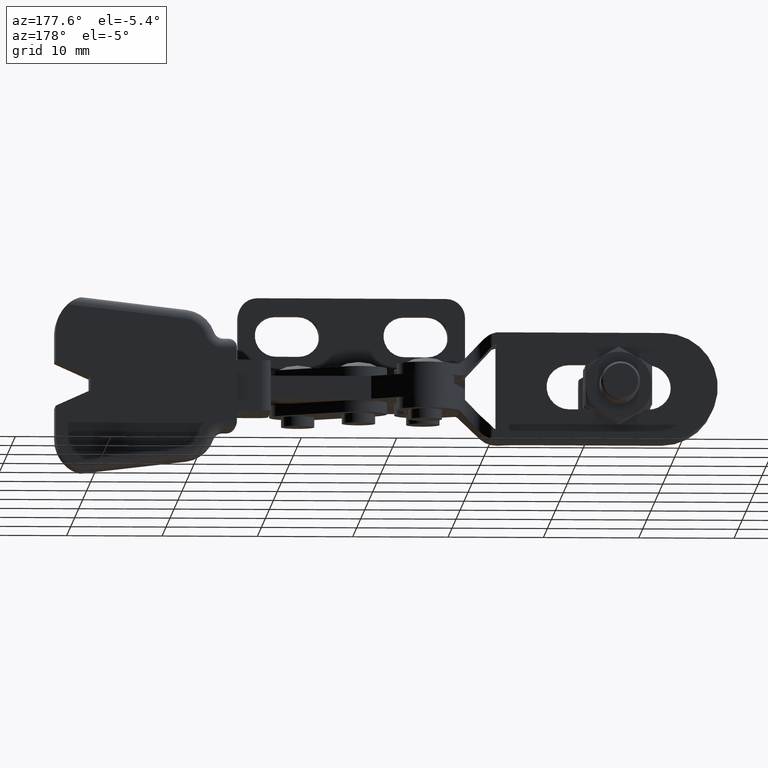
[diagram: clean part render]
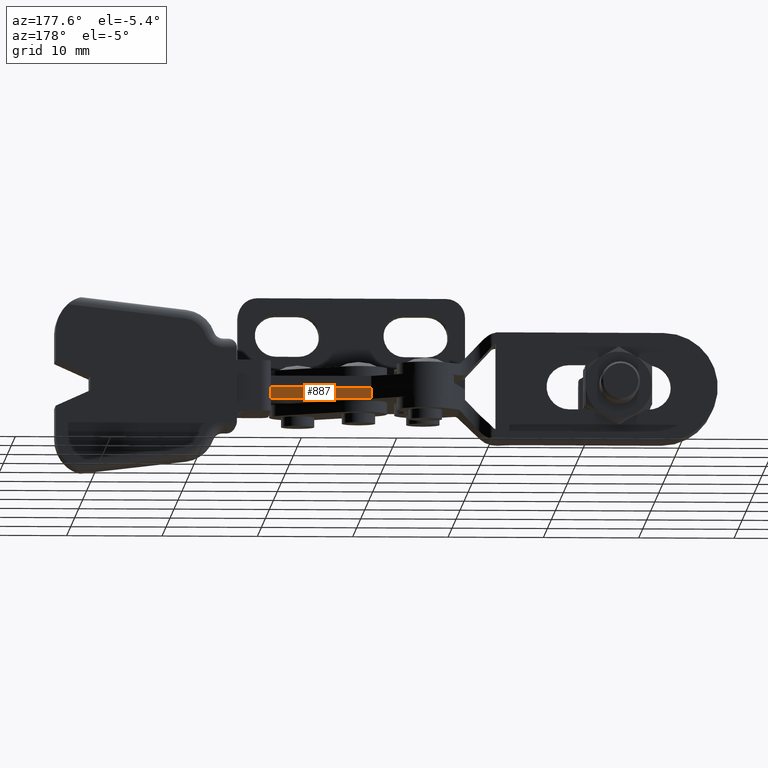
[diagram: same view with one face highlighted and labeled with its STEP entity id]
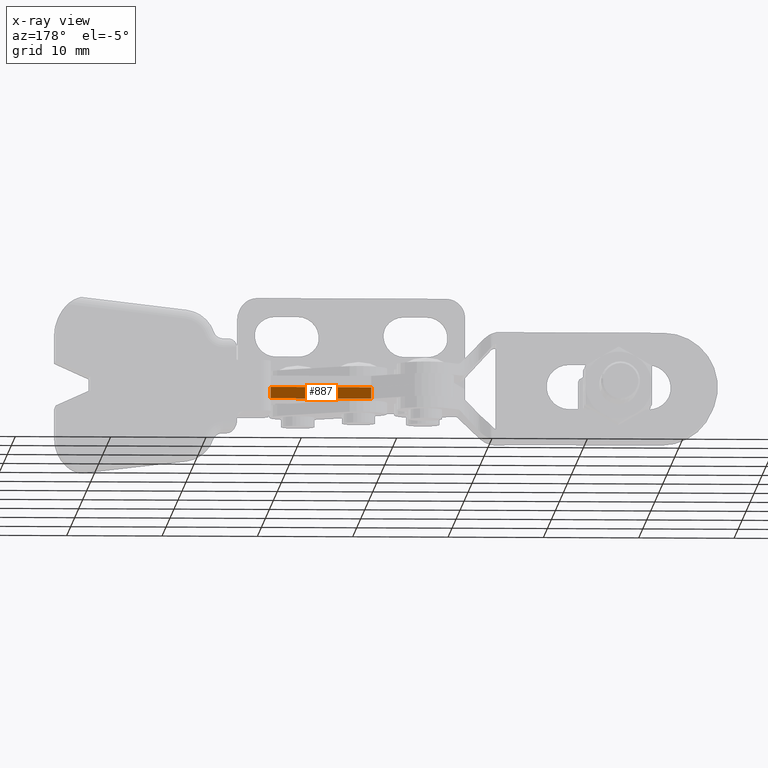
[diagram: x-ray of the same camera — body ghosted, the highlighted face saturated]
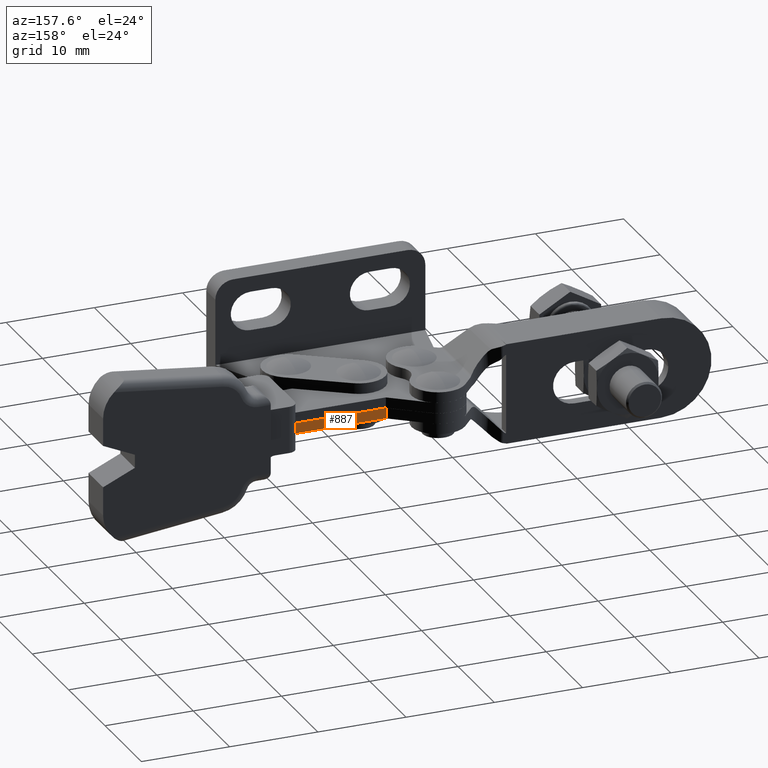
[diagram: same view with one face highlighted and labeled with its STEP entity id]
A machine part, auxiliary view. The second image highlights one B-rep face of the part: STEP entity #887.
The next image is the same camera in x-ray: the body ghosted, the highlighted face saturated — about 0% of this face is hidden behind the body in this view.
A second angle (auxiliary view) of the same face is appended — the face is thin or edge-on in the first view.
In plain terms, the highlighted planar face has unit normal (-0, 1, 0).
Its self-contained STEP definition (entity closure, byte-faithful):
#472 = EDGE_CURVE ( 'NONE', #775, #1503, #7109, .T. ) ;
#606 = CARTESIAN_POINT ( 'NONE',  ( 10.44633366691438600, 17.00001914928718300, -0.002500000000000982300 ) ) ;
#728 = EDGE_CURVE ( 'NONE', #6466, #775, #8387, .T. ) ;
#769 = DIRECTION ( 'NONE',  ( -2.952003684069184500E-006, 0.9999999999956428200, 0.0000000000000000000 ) ) ;
#775 = VERTEX_POINT ( 'NONE', #8940 ) ;
#887 = ADVANCED_FACE ( 'NONE', ( #7630 ), #4169, .T. ) ;
#1503 = VERTEX_POINT ( 'NONE', #5877 ) ;
#1827 = CARTESIAN_POINT ( 'NONE',  ( 10.44633366691438600, 17.00001914928718300, -0.002500000000000982300 ) ) ;
#2120 = ORIENTED_EDGE ( 'NONE', *, *, #6711, .F. ) ;
#2177 = ORIENTED_EDGE ( 'NONE', *, *, #472, .F. ) ;
#2689 = LINE ( 'NONE', #3879, #5915 ) ;
#2926 = DIRECTION ( 'NONE',  ( -0.9999999999956428200, -2.952003684069184500E-006, 1.304400246400908200E-016 ) ) ;
#3027 = ORIENTED_EDGE ( 'NONE', *, *, #728, .F. ) ;
#3379 = VECTOR ( 'NONE', #8447, 1000.000000000000100 ) ;
#3471 = ORIENTED_EDGE ( 'NONE', *, *, #3861, .T. ) ;
#3849 = DIRECTION ( 'NONE',  ( 0.0000000000000000000, 0.0000000000000000000, 1.000000000000000000 ) ) ;
#3861 = EDGE_CURVE ( 'NONE', #6466, #8832, #2689, .T. ) ;
#3879 = CARTESIAN_POINT ( 'NONE',  ( 10.44633366691438600, 17.00001914928718300, -2.168404344971008900E-015 ) ) ;
#4169 = PLANE ( 'NONE',  #9666 ) ;
#5159 = CARTESIAN_POINT ( 'NONE',  ( 20.99219719694409400, 17.00005028071517500, -2.168404344971008900E-015 ) ) ;
#5202 = DIRECTION ( 'NONE',  ( 0.0000000000000000000, 0.0000000000000000000, 1.000000000000000000 ) ) ;
#5877 = CARTESIAN_POINT ( 'NONE',  ( 20.99219719694409400, 17.00005028071517500, -0.002500000000001632900 ) ) ;
#5915 = VECTOR ( 'NONE', #3849, 1000.000000000000000 ) ;
#6391 = CARTESIAN_POINT ( 'NONE',  ( 10.44633366691438600, 17.00001914928718300, -2.168404344971008900E-015 ) ) ;
#6466 = VERTEX_POINT ( 'NONE', #9394 ) ;
#6711 = EDGE_CURVE ( 'NONE', #1503, #8832, #9534, .T. ) ;
#7109 = LINE ( 'NONE', #5159, #7590 ) ;
#7562 = DIRECTION ( 'NONE',  ( 0.0000000000000000000, 0.0000000000000000000, 1.000000000000000000 ) ) ;
#7590 = VECTOR ( 'NONE', #5202, 1000.000000000000000 ) ;
#7630 = FACE_OUTER_BOUND ( 'NONE', #9448, .T. ) ;
#7720 = CARTESIAN_POINT ( 'NONE',  ( 10.44633366691438600, 17.00001914928718300, -1.200000000000002000 ) ) ;
#7873 = VECTOR ( 'NONE', #2926, 1000.000000000000100 ) ;
#8387 = LINE ( 'NONE', #7720, #3379 ) ;
#8447 = DIRECTION ( 'NONE',  ( 0.9999999999956428200, 2.952003684069184500E-006, 0.0000000000000000000 ) ) ;
#8832 = VERTEX_POINT ( 'NONE', #1827 ) ;
#8940 = CARTESIAN_POINT ( 'NONE',  ( 20.99219719694409400, 17.00005028071517500, -1.200000000000002000 ) ) ;
#9394 = CARTESIAN_POINT ( 'NONE',  ( 10.44633366691438600, 17.00001914928718300, -1.200000000000002000 ) ) ;
#9448 = EDGE_LOOP ( 'NONE', ( #2120, #2177, #3027, #3471 ) ) ;
#9534 = LINE ( 'NONE', #606, #7873 ) ;
#9666 = AXIS2_PLACEMENT_3D ( 'NONE', #6391, #769, #7562 ) ;